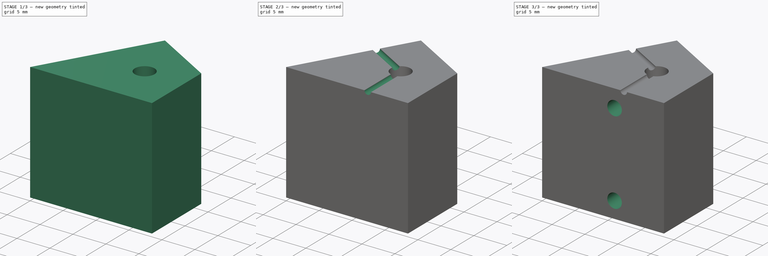
[diagram: build sequence overview — one tinted view per stage of 3, left to right]
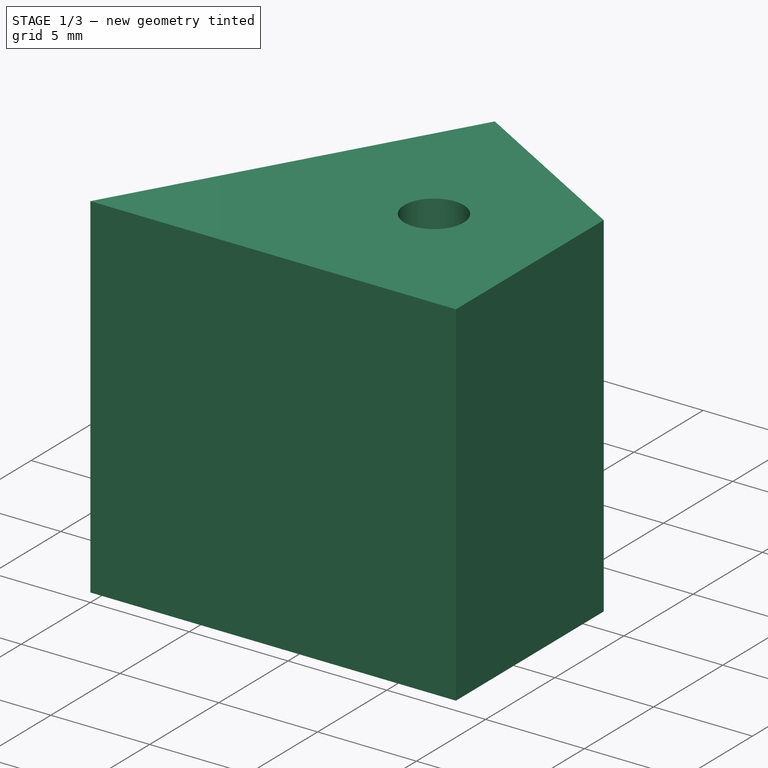
[diagram: stage 1 of 3 — iso view after this stage's code; geometry added in this stage tinted green]
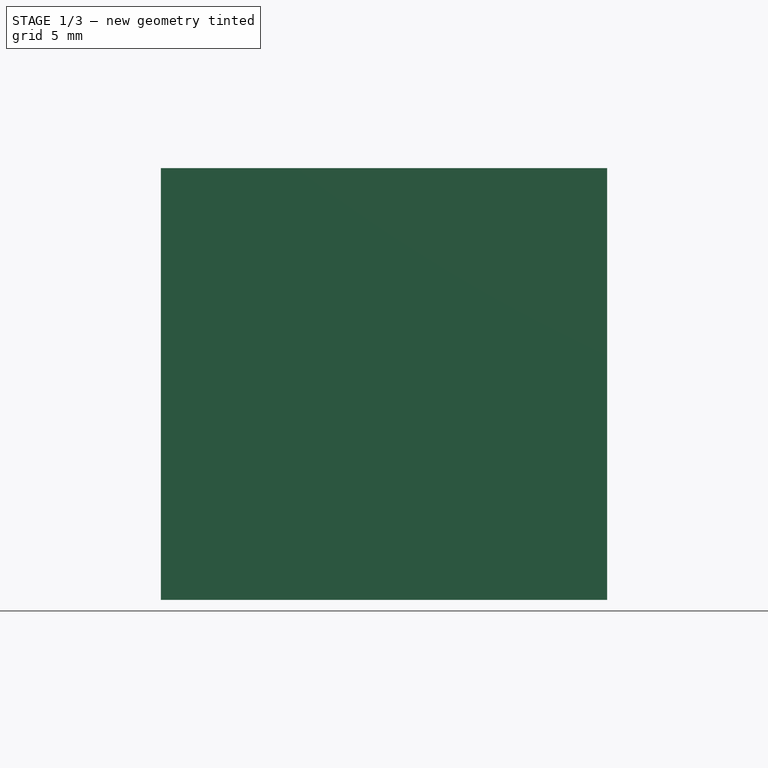
[diagram: stage 1 of 3 — front view after this stage's code; geometry added in this stage tinted green]
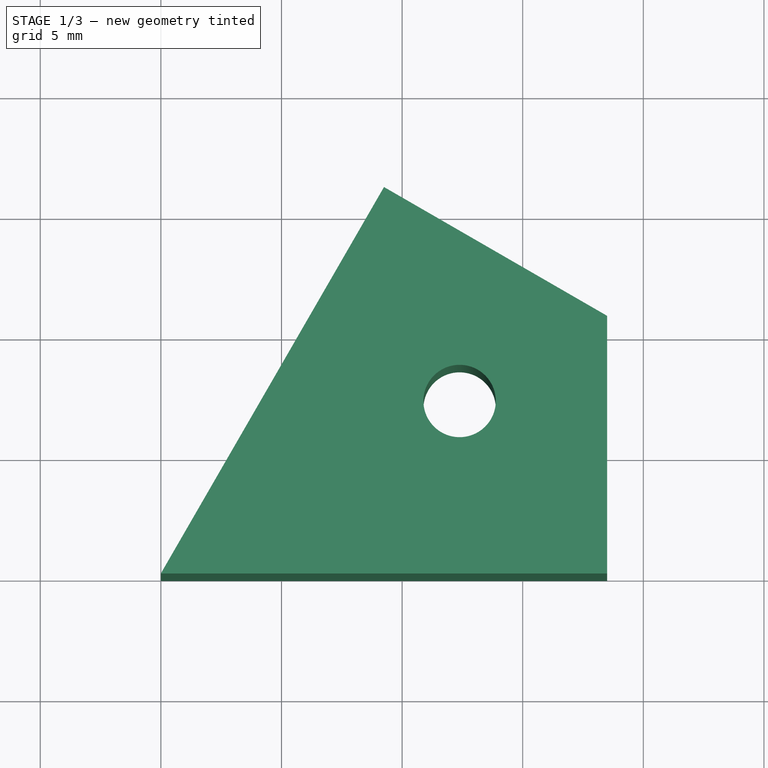
[diagram: stage 1 of 3 — top view after this stage's code; geometry added in this stage tinted green]
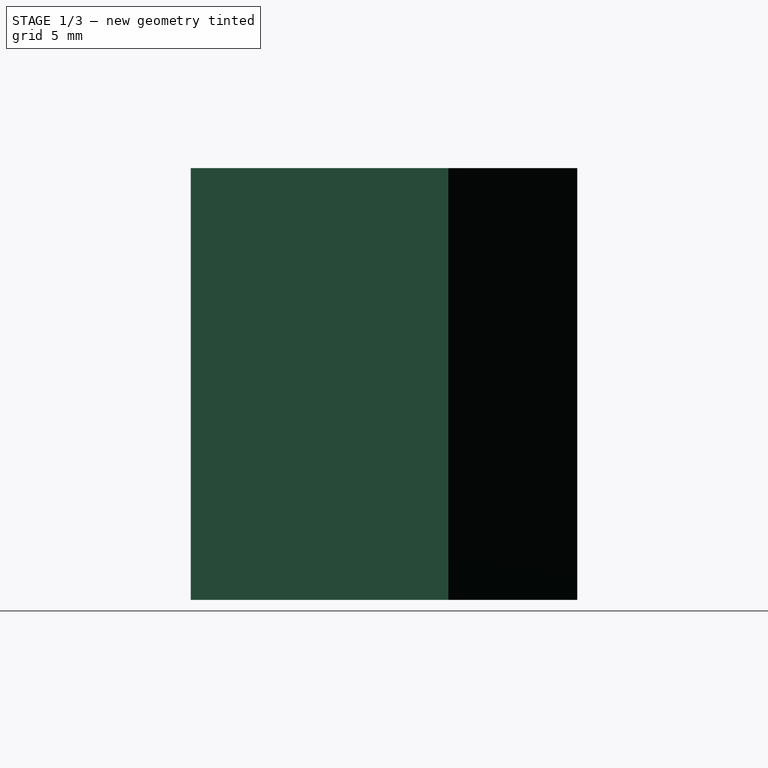
[diagram: stage 1 of 3 — right view after this stage's code; geometry added in this stage tinted green]
FCSTD DOCUMENT  (FreeCAD 0.16R6712 (Git))
Label: lidarArrow
License: All rights reserved
LicenseURL: http://en.wikipedia.org/wiki/All_rights_reserved
objects: Sketcher::SketchObject×7, PartDesign::Pocket×5, PartDesign::Pad×1
note: 19 computed .brp shape members not serialized (recipe doc carries the construction recipe); baked Part::Feature solids carry a one-line shape summary decoded from their .brp

FEATURE [Sketcher::SketchObject] Sketch
  sketch-geometry (5):
    g0: LineSegment StartX=0 StartY=0 StartZ=0 EndX=18.5 EndY=0 EndZ=0
    g1: LineSegment StartX=0 StartY=0 StartZ=0 EndX=9.25 EndY=16.0215 EndZ=0
    g2: Circle [constr] CenterX=0 CenterY=0 CenterZ=0 NormalX=0 NormalY=0 NormalZ=1 Radius=18.5
    g3: LineSegment StartX=18.5 StartY=0 StartZ=0 EndX=18.5 EndY=10.681 EndZ=0
    g4: LineSegment StartX=9.25 StartY=16.0215 StartZ=0 EndX=18.5 EndY=10.681 EndZ=0
  constraints (13):
    c: Coincident(g0,g-1)
    c: PointOnObject(g0,g-1)
    c: DistanceX(g0,g0) = 18.5
    c: Coincident(g1,g-1)
    c: Angle(g0,g1) = 1.0472
    c: PointOnObject(g0,g2)
    c: PointOnObject(g1,g2)
    c: Coincident(g2,g-1)
    c: Coincident(g3,g0)
    c: Vertical(g3)
    c: Coincident(g4,g1)
    c: Coincident(g4,g3)
    c: Perpendicular(g1,g4)
FEATURE [PartDesign::Pad] Pad
  Length = 17.9
  Length2 = 100
  Sketch = -> Sketch
  Type = 0
FEATURE [Sketcher::SketchObject] Sketch001
  ExternalGeometry = -> [Pad]
  Placement = pos=(0,0,17.9) rot=(0,0,1;0rad)
  Support = -> Pad [Face6]
  sketch-geometry (3):
    g0: LineSegment [constr] StartX=0 StartY=0 StartZ=0 EndX=18.5 EndY=10.681 EndZ=0
    g1: Circle CenterX=12.3842 CenterY=7.15 CenterZ=0 NormalX=0 NormalY=0 NormalZ=1 Radius=1.5
    g2: Circle [constr] CenterX=0 CenterY=0 CenterZ=0 NormalX=0 NormalY=0 NormalZ=1 Radius=14.3
  constraints (7):
    c: Coincident(g0,g-1)
    c: Coincident(g0,g-6)
    c: PointOnObject(g1,g0)
    c: Radius(g1) = 1.5
    c: Coincident(g2,g-1)
    c: PointOnObject(g1,g2)
    c: Radius(g2) = 14.3
FEATURE [PartDesign::Pocket] Pocket
  Length = 5
  Sketch = -> Sketch001
  Type = 2
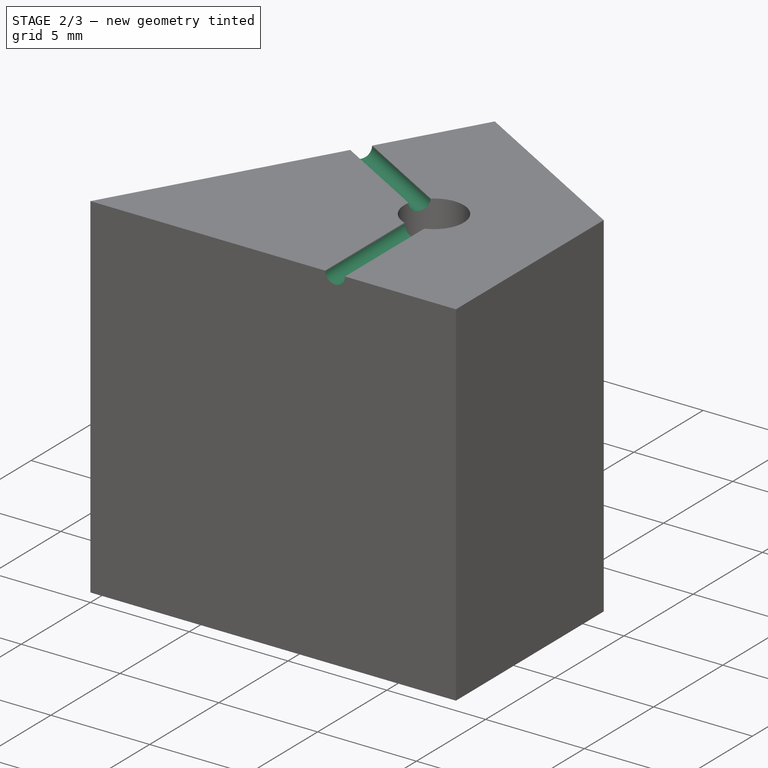
[diagram: stage 2 of 3 — iso view after this stage's code; geometry added in this stage tinted green]
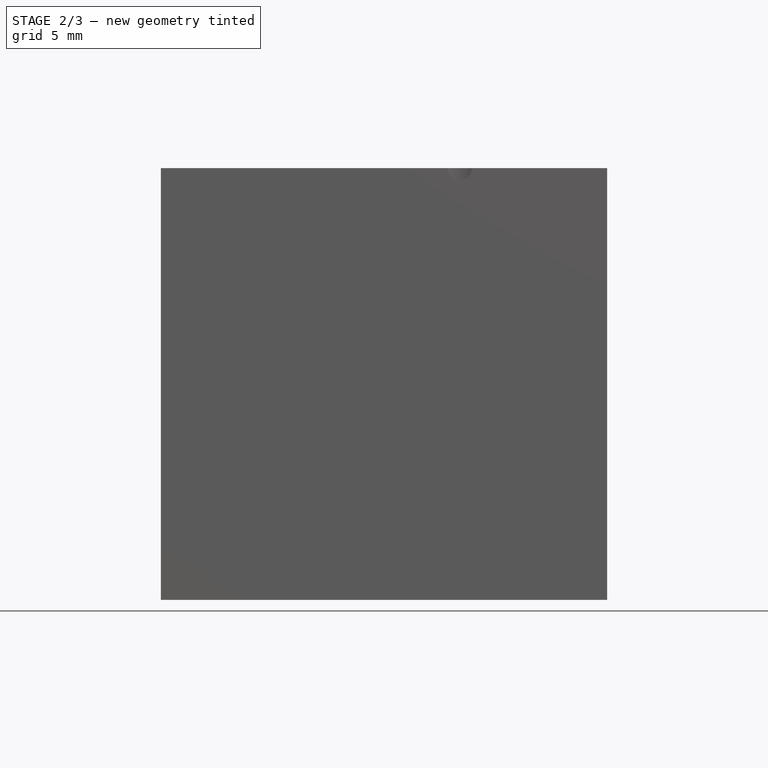
[diagram: stage 2 of 3 — front view after this stage's code; geometry added in this stage tinted green]
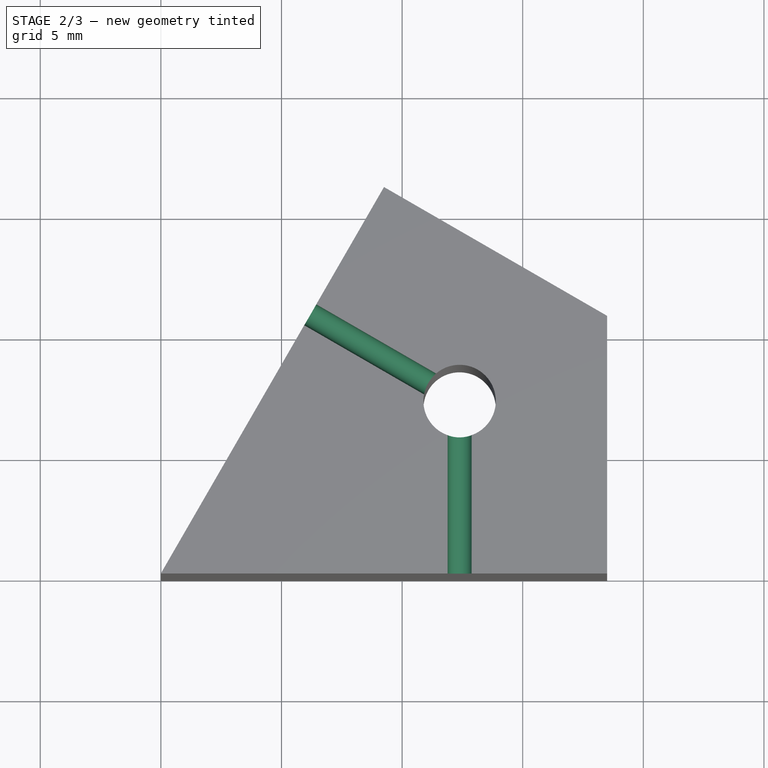
[diagram: stage 2 of 3 — top view after this stage's code; geometry added in this stage tinted green]
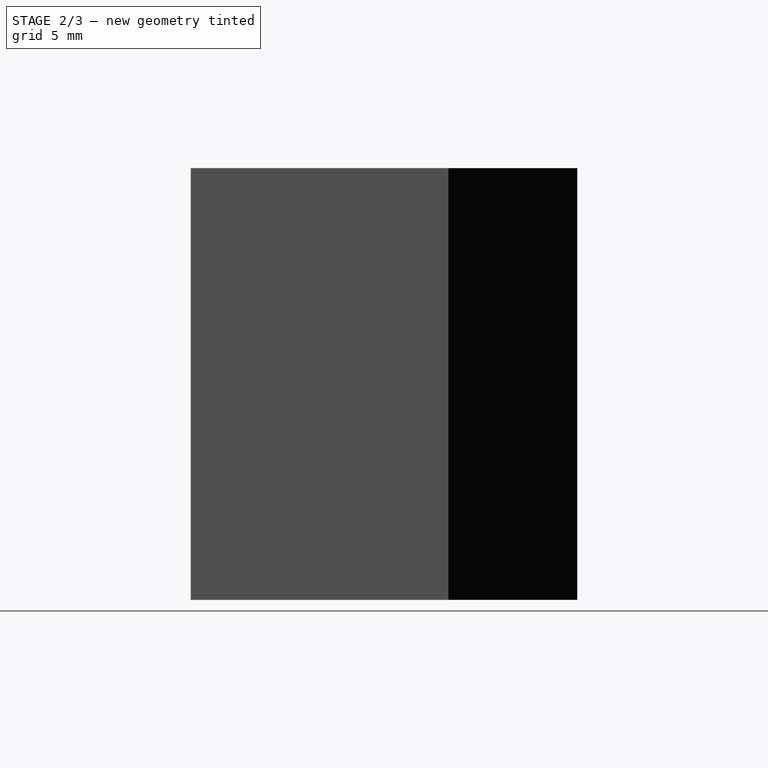
[diagram: stage 2 of 3 — right view after this stage's code; geometry added in this stage tinted green]
FEATURE [Sketcher::SketchObject] Sketch002
  ExternalGeometry = -> [Pocket]
  Placement = pos=(0,0,17.9) rot=(0,0,1;0rad)
  Support = -> Pocket [Face5]
  sketch-geometry (2):
    g0: LineSegment StartX=12.3842 StartY=7.15 StartZ=0 EndX=6.19208 EndY=10.725 EndZ=0
    g1: LineSegment StartX=12.3842 StartY=7.15 StartZ=0 EndX=12.3842 EndY=0 EndZ=0
  constraints (6):
    c: Coincident(g0,g-7)
    c: PointOnObject(g0,g-4)
    c: Perpendicular(g-4,g0)
    c: PointOnObject(g1,g-5)
    c: Vertical(g1)
    c: Coincident(g1,g0)
FEATURE [Sketcher::SketchObject] Sketch003
  ExternalGeometry = -> [Pocket]
  Placement = pos=(0,0,0) rot=(1,0,0;1.5708rad)
  Support = -> Pocket [Face1]
  sketch-geometry (1):
    g0: Circle CenterX=12.385 CenterY=17.9 CenterZ=0 NormalX=0 NormalY=0 NormalZ=1 Radius=0.5
  constraints (3):
    c: PointOnObject(g0,g-3)
    c: DistanceX(g-3,g0) = 12.385
    c: Radius(g0) = 0.5
FEATURE [PartDesign::Pocket] Pocket001
  Length = 6
  Sketch = -> Sketch003
  Type = 0
FEATURE [Sketcher::SketchObject] Sketch004
  ExternalGeometry = -> [Pocket001]
  Placement = pos=(0,0,0) rot=(-0.377964,0.654654,0.654654;3.86433rad)
  Support = -> Pocket001 [Face6]
  sketch-geometry (1):
    g0: Circle CenterX=-12.385 CenterY=17.9 CenterZ=0 NormalX=0 NormalY=0 NormalZ=1 Radius=0.5
  constraints (3):
    c: PointOnObject(g0,g-3)
    c: DistanceX(g0,g-3) = 12.385
    c: Radius(g0) = 0.5
FEATURE [PartDesign::Pocket] Pocket002
  Length = 6
  Sketch = -> Sketch004
  Type = 0
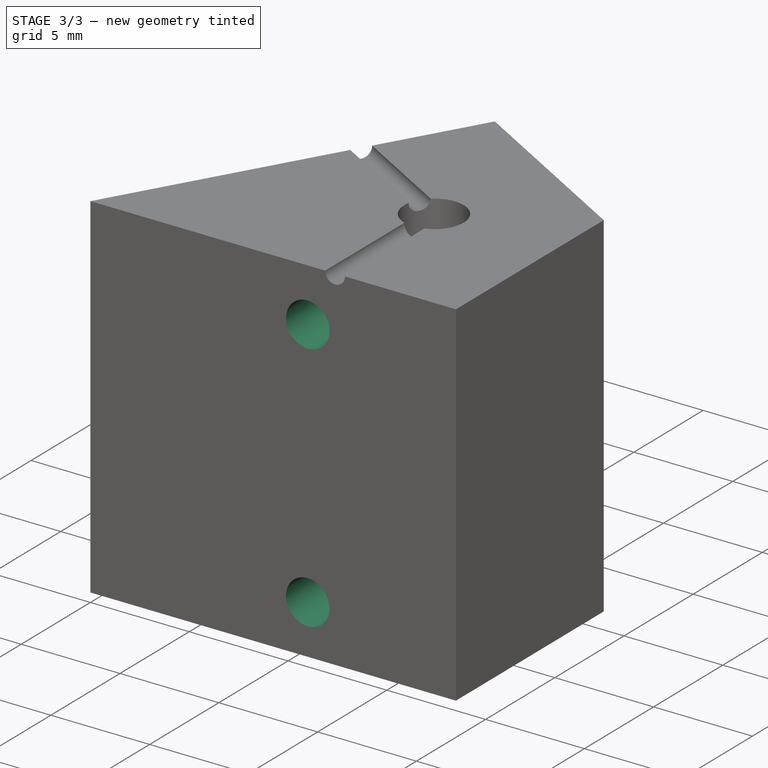
[diagram: stage 3 of 3 — iso view after this stage's code; geometry added in this stage tinted green]
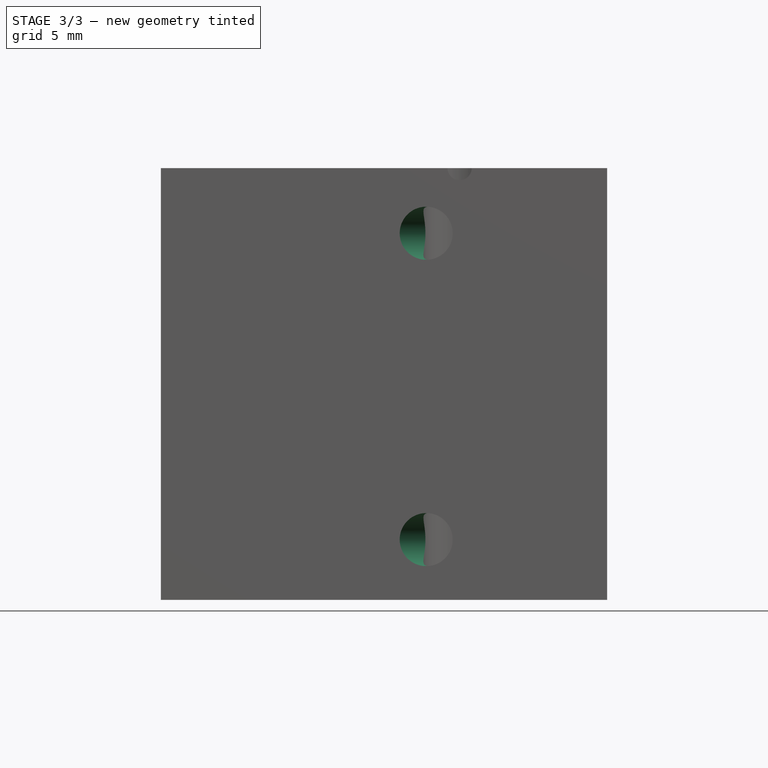
[diagram: stage 3 of 3 — front view after this stage's code; geometry added in this stage tinted green]
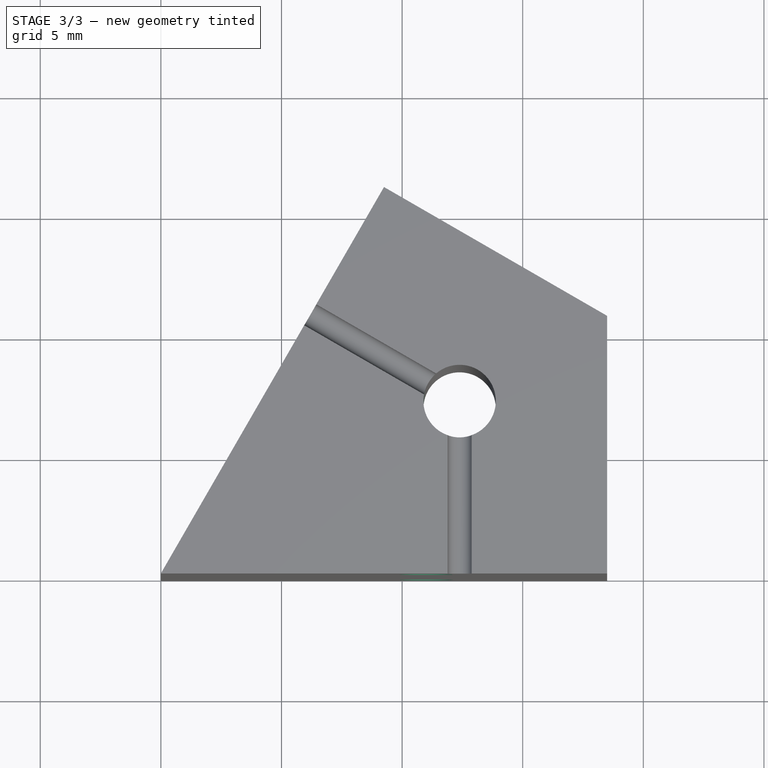
[diagram: stage 3 of 3 — top view after this stage's code; geometry added in this stage tinted green]
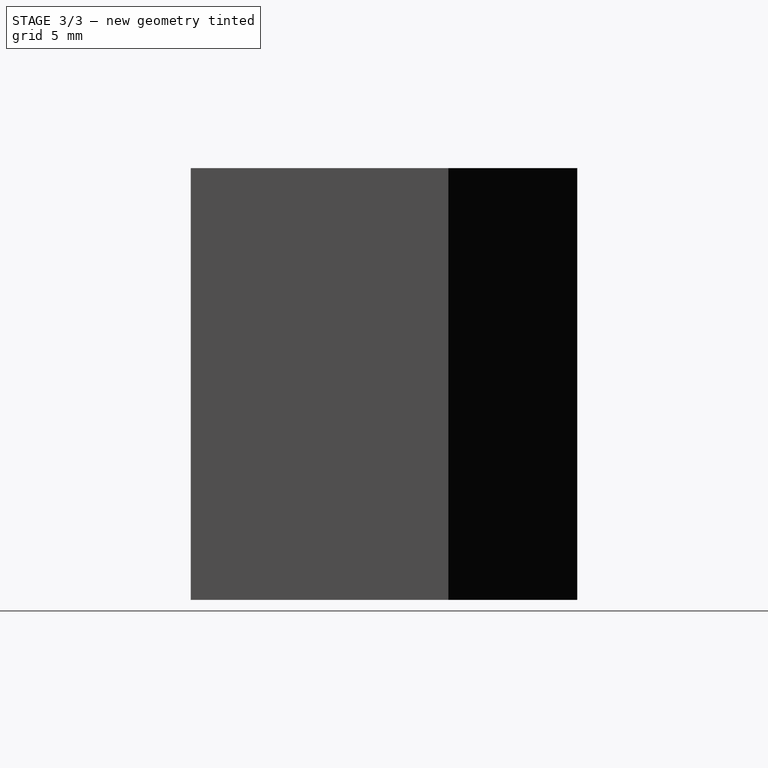
[diagram: stage 3 of 3 — right view after this stage's code; geometry added in this stage tinted green]
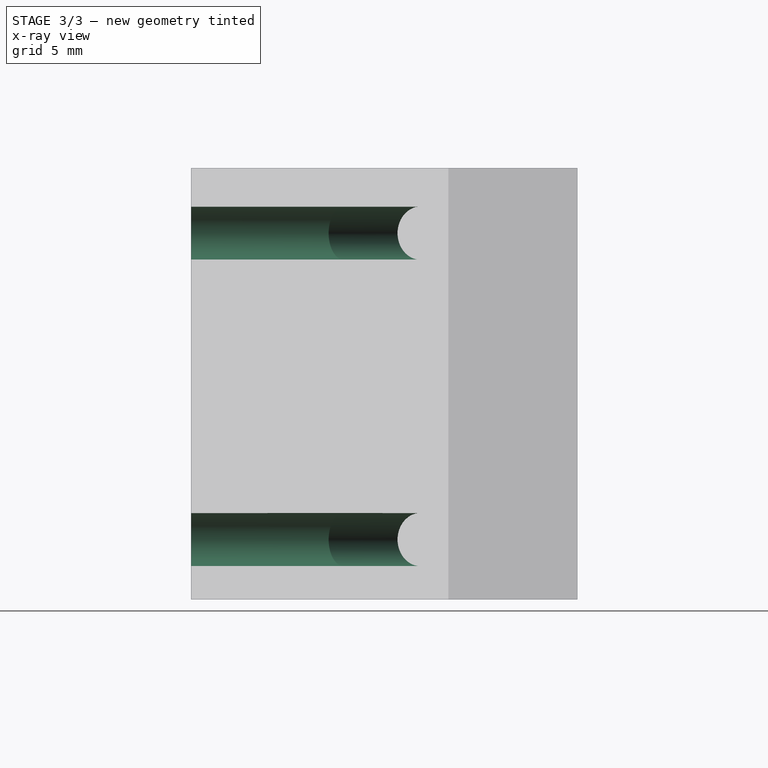
[diagram: stage 3 of 3 — x-ray composite at the right view; earlier geometry ghosted, this stage's added geometry solid]
FEATURE [Sketcher::SketchObject] Sketch005
  ExternalGeometry = -> [Pocket002]
  Placement = pos=(0,0,0) rot=(1,0,0;1.5708rad)
  Support = -> Pocket002 [Face1]
  sketch-geometry (3):
    g0: Circle CenterX=11 CenterY=15.2 CenterZ=0 NormalX=0 NormalY=0 NormalZ=1 Radius=1.1
    g1: Circle CenterX=11 CenterY=2.5 CenterZ=0 NormalX=0 NormalY=0 NormalZ=1 Radius=1.1
    g2: LineSegment [constr] StartX=11 StartY=15.2 StartZ=0 EndX=11 EndY=0 EndZ=0
  constraints (9):
    c: Coincident(g2,g0)
    c: PointOnObject(g2,g-5)
    c: Vertical(g2)
    c: PointOnObject(g1,g2)
    c: Equal(g0,g1)
    c: Radius(g1) = 1.1
    c: DistanceY(g2,g1) = 2.5
    c: DistanceY(g1,g0) = 12.7
    c: DistanceX(g-1,g2) = 11
FEATURE [PartDesign::Pocket] Pocket003
  Length = 6.5
  Sketch = -> Sketch005
  Type = 0
FEATURE [Sketcher::SketchObject] Sketch006
  ExternalGeometry = -> [Pocket003]
  Placement = pos=(0,0,0) rot=(-0.377964,0.654654,0.654654;3.86433rad)
  Support = -> Pocket003 [Face3]
  sketch-geometry (3):
    g0: LineSegment [constr] StartX=-11 StartY=15.2 StartZ=0 EndX=-11 EndY=0 EndZ=0
    g1: Circle CenterX=-11 CenterY=15.2 CenterZ=0 NormalX=0 NormalY=0 NormalZ=1 Radius=1.1
    g2: Circle CenterX=-11 CenterY=2.5 CenterZ=0 NormalX=0 NormalY=0 NormalZ=1 Radius=1.1
  constraints (9):
    c: Vertical(g0)
    c: PointOnObject(g0,g-5)
    c: DistanceX(g0,g-1) = 11
    c: Coincident(g1,g0)
    c: PointOnObject(g2,g0)
    c: Equal(g2,g1)
    c: Radius(g2) = 1.1
    c: DistanceY(g0,g2) = 2.5
    c: DistanceY(g2,g0) = 12.7
FEATURE [PartDesign::Pocket] Pocket004
  Length = 6.5
  Sketch = -> Sketch006
  Type = 0
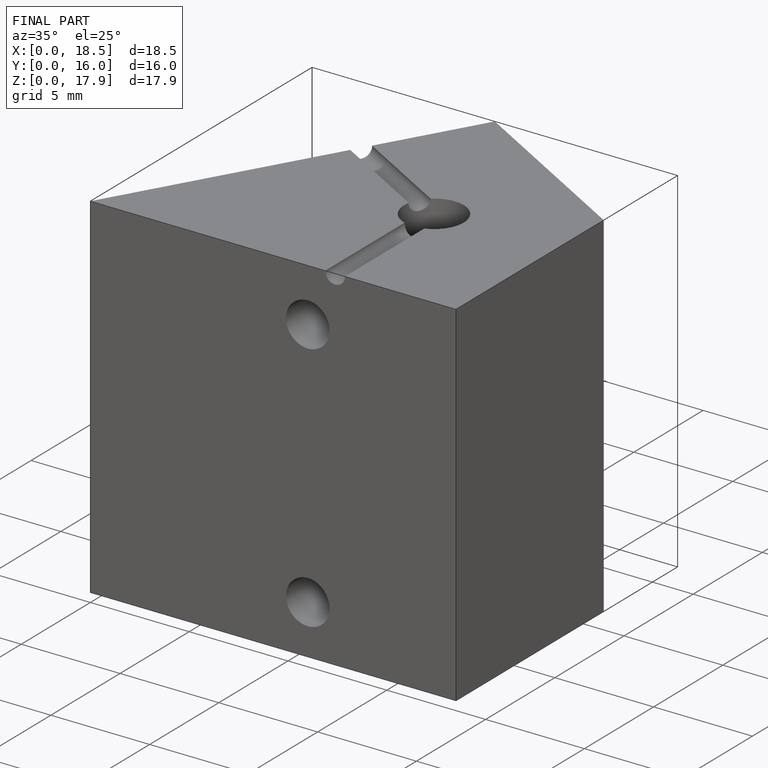
[diagram: finished part — iso view with bounding-box wireframe]
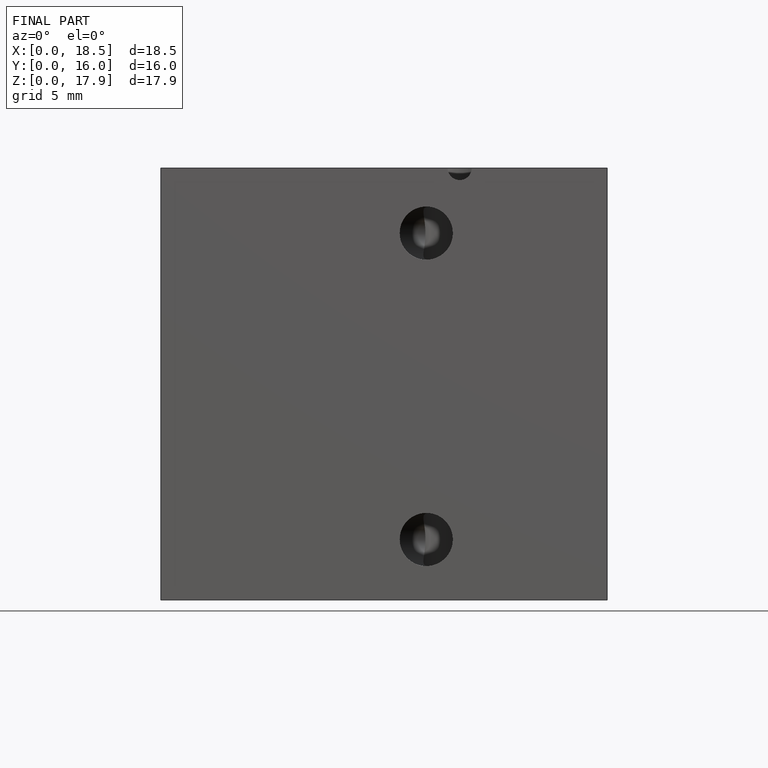
[diagram: finished part — front view with bounding-box wireframe]
